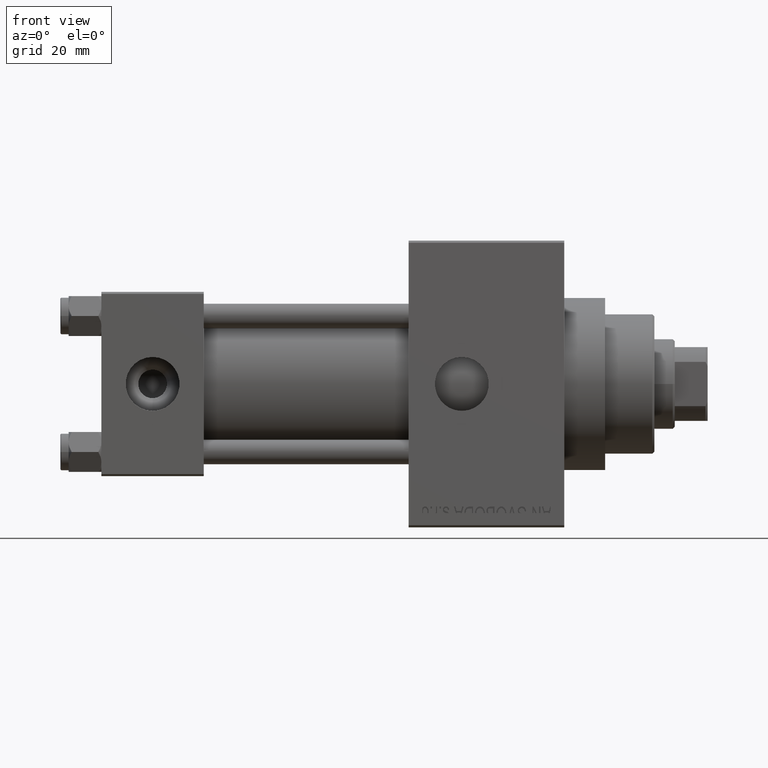
[diagram: clean part render]
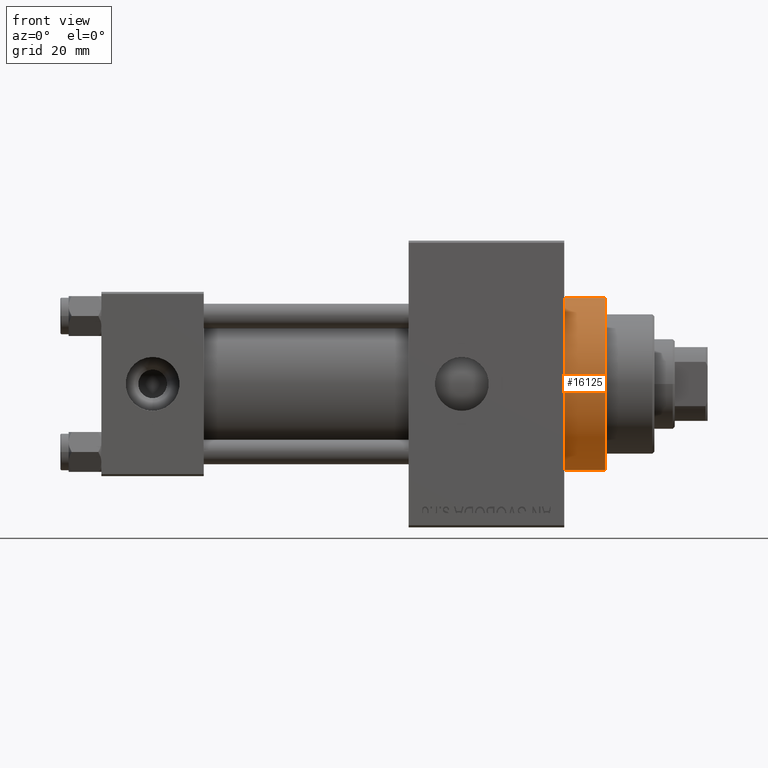
[diagram: same view with one face highlighted and labeled with its STEP entity id]
A machine part, front view. The second image highlights one B-rep face of the part: STEP entity #16125.
In plain terms, the highlighted cylindrical surface (partial cylindrical patch) has radius 21 mm, axis along (-1, -0, -0).
Its self-contained STEP definition (entity closure, byte-faithful):
#94 = DIRECTION ( 'NONE',  ( 0.000000000000000000, 0.000000000000000000, -1.000000000000000000 ) ) ;
#1260 = EDGE_CURVE ( 'NONE', #3117, #1603, #46304, .T. ) ;
#1603 = VERTEX_POINT ( 'NONE', #30316 ) ;
#3075 = CYLINDRICAL_SURFACE ( 'NONE', #7623, 21.00000000000000000 ) ;
#3117 = VERTEX_POINT ( 'NONE', #43472 ) ;
#3938 = LINE ( 'NONE', #29707, #9865 ) ;
#4439 = EDGE_CURVE ( 'NONE', #39166, #7190, #21087, .T. ) ;
#5772 = ORIENTED_EDGE ( 'NONE', *, *, #6550, .F. ) ;
#6550 = EDGE_CURVE ( 'NONE', #7190, #1603, #15045, .T. ) ;
#6650 = FACE_OUTER_BOUND ( 'NONE', #8098, .T. ) ;
#7190 = VERTEX_POINT ( 'NONE', #8005 ) ;
#7623 = AXIS2_PLACEMENT_3D ( 'NONE', #32160, #46692, #43119 ) ;
#8005 = CARTESIAN_POINT ( 'NONE',  ( 123.0000000000000142, 2.571758278209441661E-15, -21.00000000000000000 ) ) ;
#8098 = EDGE_LOOP ( 'NONE', ( #5772, #12913, #31970, #31990 ) ) ;
#9865 = VECTOR ( 'NONE', #25906, 1000.000000000000000 ) ;
#11063 = EDGE_CURVE ( 'NONE', #39166, #3117, #3938, .T. ) ;
#12913 = ORIENTED_EDGE ( 'NONE', *, *, #4439, .F. ) ;
#12960 = CARTESIAN_POINT ( 'NONE',  ( 113.0000000000000142, 0.000000000000000000, 0.000000000000000000 ) ) ;
#15045 = LINE ( 'NONE', #29590, #27258 ) ;
#16125 = ADVANCED_FACE ( 'NONE', ( #6650 ), #3075, .T. ) ;
#18008 = AXIS2_PLACEMENT_3D ( 'NONE', #28720, #43254, #94 ) ;
#18936 = AXIS2_PLACEMENT_3D ( 'NONE', #12960, #23710, #38228 ) ;
#21087 = CIRCLE ( 'NONE', #18008, 21.00000000000000000 ) ;
#23710 = DIRECTION ( 'NONE',  ( 1.000000000000000000, 0.000000000000000000, 0.000000000000000000 ) ) ;
#25729 = CARTESIAN_POINT ( 'NONE',  ( 123.0000000000000142, 0.000000000000000000, 21.00000000000000000 ) ) ;
#25906 = DIRECTION ( 'NONE',  ( -1.000000000000000000, -0.000000000000000000, -0.000000000000000000 ) ) ;
#27258 = VECTOR ( 'NONE', #33155, 1000.000000000000000 ) ;
#28720 = CARTESIAN_POINT ( 'NONE',  ( 123.0000000000000142, 0.000000000000000000, 0.000000000000000000 ) ) ;
#29590 = CARTESIAN_POINT ( 'NONE',  ( 123.0000000000000142, 2.571758278209441661E-15, -21.00000000000000000 ) ) ;
#29707 = CARTESIAN_POINT ( 'NONE',  ( 123.0000000000000142, 0.000000000000000000, 21.00000000000000000 ) ) ;
#30316 = CARTESIAN_POINT ( 'NONE',  ( 113.0000000000000142, 2.571758278209441661E-15, -21.00000000000000000 ) ) ;
#31970 = ORIENTED_EDGE ( 'NONE', *, *, #11063, .T. ) ;
#31990 = ORIENTED_EDGE ( 'NONE', *, *, #1260, .T. ) ;
#32160 = CARTESIAN_POINT ( 'NONE',  ( 123.0000000000000142, 0.000000000000000000, 0.000000000000000000 ) ) ;
#33155 = DIRECTION ( 'NONE',  ( -1.000000000000000000, -0.000000000000000000, -0.000000000000000000 ) ) ;
#38228 = DIRECTION ( 'NONE',  ( 0.000000000000000000, 0.000000000000000000, -1.000000000000000000 ) ) ;
#39166 = VERTEX_POINT ( 'NONE', #25729 ) ;
#43119 = DIRECTION ( 'NONE',  ( 0.000000000000000000, 0.000000000000000000, 1.000000000000000000 ) ) ;
#43254 = DIRECTION ( 'NONE',  ( 1.000000000000000000, 0.000000000000000000, 0.000000000000000000 ) ) ;
#43472 = CARTESIAN_POINT ( 'NONE',  ( 113.0000000000000142, 0.000000000000000000, 21.00000000000000000 ) ) ;
#46304 = CIRCLE ( 'NONE', #18936, 21.00000000000000000 ) ;
#46692 = DIRECTION ( 'NONE',  ( -1.000000000000000000, -0.000000000000000000, -0.000000000000000000 ) ) ;